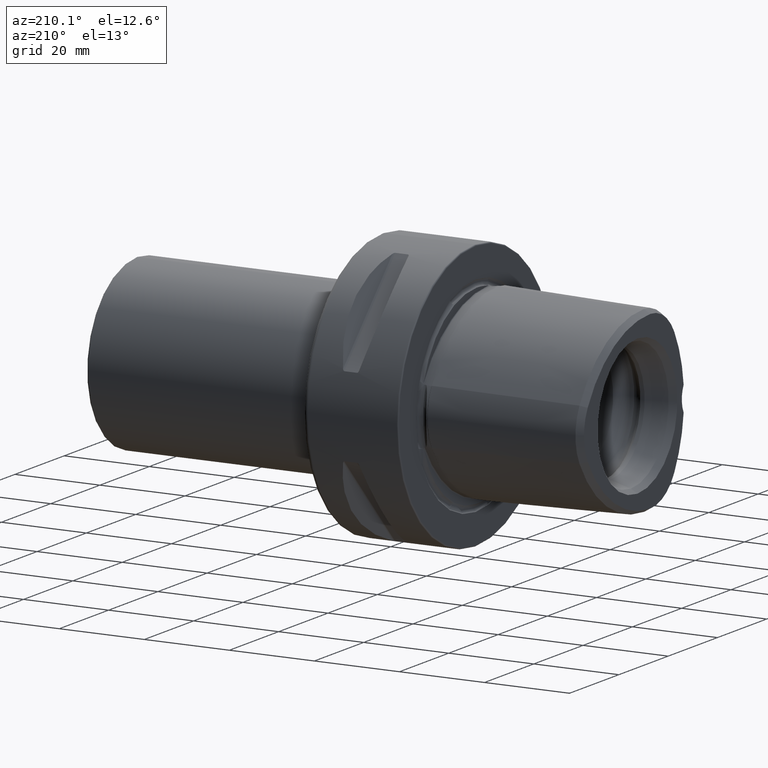
[diagram: clean part render]
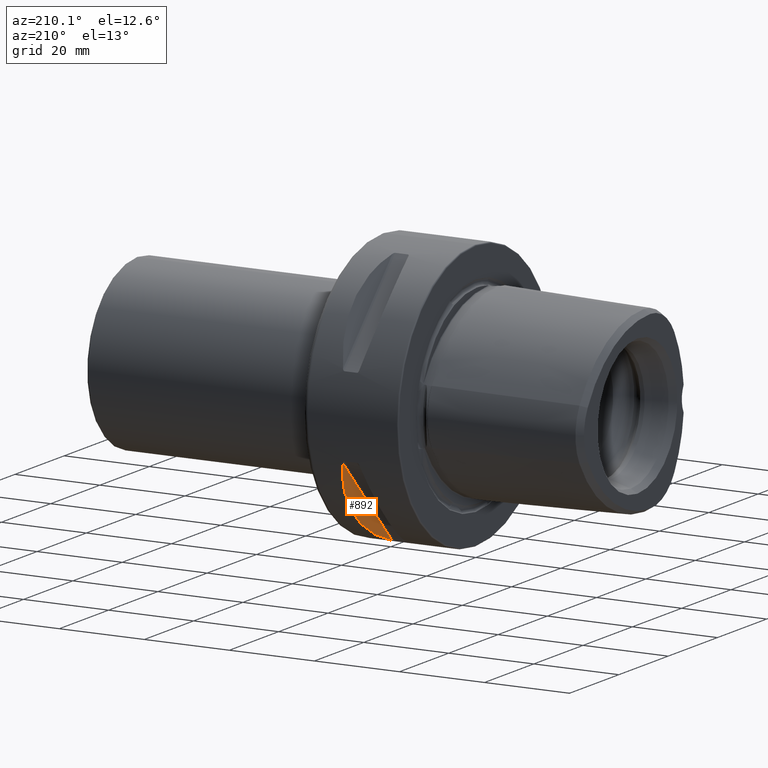
[diagram: same view with one face highlighted and labeled with its STEP entity id]
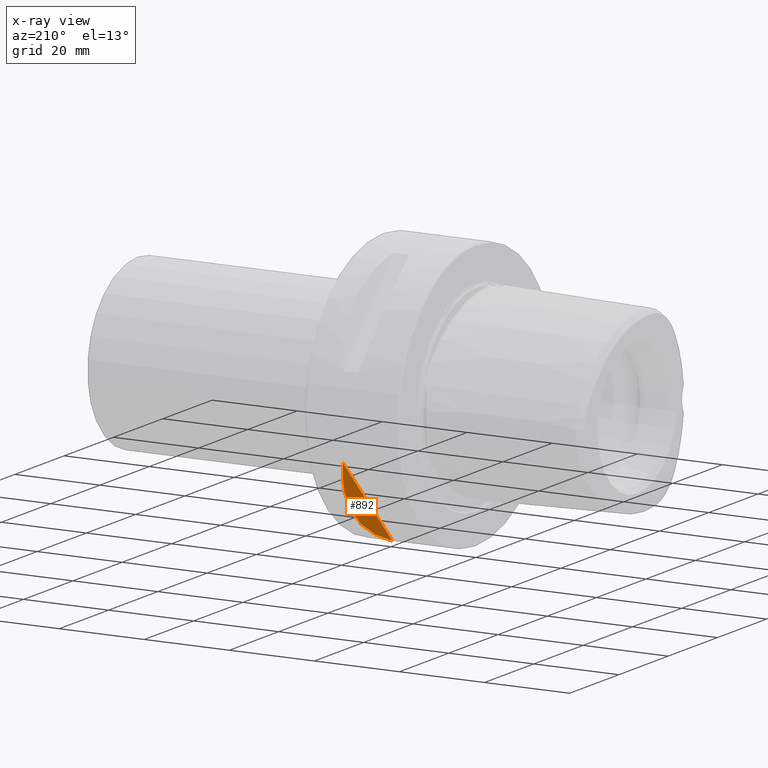
[diagram: x-ray of the same camera — body ghosted, the highlighted face saturated]
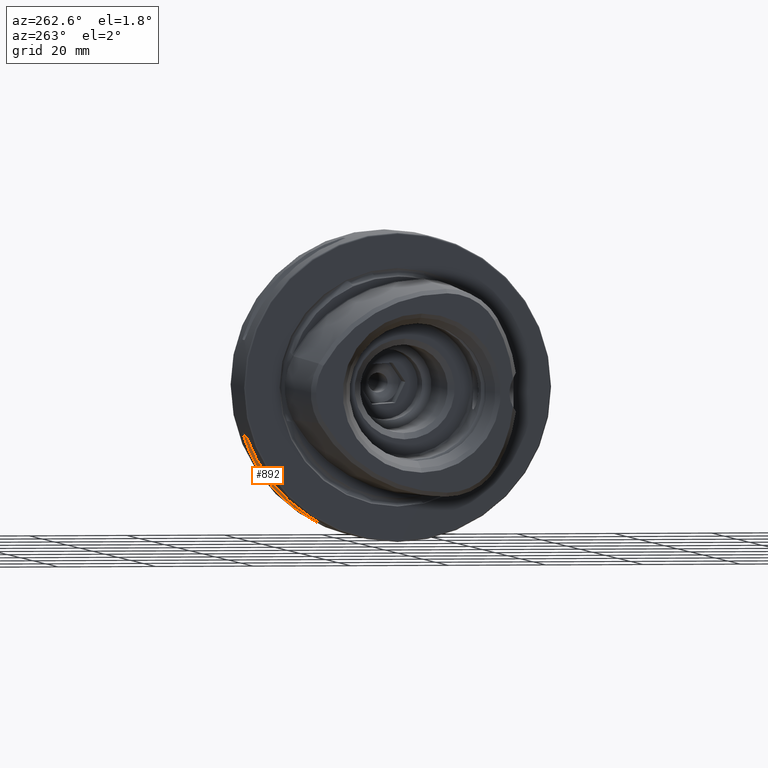
[diagram: same view with one face highlighted and labeled with its STEP entity id]
A machine part, auxiliary view. The second image highlights one B-rep face of the part: STEP entity #892.
The next image is the same camera in x-ray: the body ghosted, the highlighted face saturated — about 0% of this face is hidden behind the body in this view.
A second angle (auxiliary view) of the same face is appended — the face is thin or edge-on in the first view.
In plain terms, the highlighted planar face has unit normal (0.866, -0.3536, 0.3536).
Its self-contained STEP definition (entity closure, byte-faithful):
#143 =( BOUNDED_CURVE ( )  B_SPLINE_CURVE ( 3, ( #2285, #3342, #4476, #1222 ),
 .UNSPECIFIED., .F., .F. ) 
 B_SPLINE_CURVE_WITH_KNOTS ( ( 4, 4 ),
 ( 2.676211970017954700, 3.606973337161631900 ),
 .UNSPECIFIED. ) 
 CURVE ( )  GEOMETRIC_REPRESENTATION_ITEM ( )  RATIONAL_B_SPLINE_CURVE ( ( 1.000000000000000000, 0.9291005291005292000, 0.9291005291005292000, 1.000000000000000000 ) ) 
 REPRESENTATION_ITEM ( '' )  );
#158 = VERTEX_POINT ( 'NONE', #6399 ) ;
#567 = AXIS2_PLACEMENT_3D ( 'NONE', #6280, #5796, #6304 ) ;
#892 = ADVANCED_FACE ( 'NONE', ( #6132 ), #5188, .F. ) ;
#1222 = CARTESIAN_POINT ( 'NONE',  ( 13.90525588832577800, 29.90074246011739600, -9.909369320684987800 ) ) ;
#1292 = ORIENTED_EDGE ( 'NONE', *, *, #2355, .F. ) ;
#1417 = LINE ( 'NONE', #4401, #6815 ) ;
#2285 = CARTESIAN_POINT ( 'NONE',  ( 13.90525588832577800, 9.909369320685723200, -29.90074246011715400 ) ) ;
#2314 = EDGE_CURVE ( 'NONE', #158, #6191, #1417, .T. ) ;
#2355 = EDGE_CURVE ( 'NONE', #158, #6191, #143, .T. ) ;
#2619 = EDGE_LOOP ( 'NONE', ( #5174, #1292 ) ) ;
#3342 = CARTESIAN_POINT ( 'NONE',  ( 16.53328461079704700, 19.53756880257770200, -26.70987237765804800 ) ) ;
#4401 = CARTESIAN_POINT ( 'NONE',  ( 13.90525588832577800, -11.59494410959804600, -51.40505589040144900 ) ) ;
#4476 = CARTESIAN_POINT ( 'NONE',  ( 16.53328461079704300, 26.70987237765853100, -19.53756880257703100 ) ) ;
#5174 = ORIENTED_EDGE ( 'NONE', *, *, #2314, .T. ) ;
#5188 = PLANE ( 'NONE',  #567 ) ;
#5796 = DIRECTION ( 'NONE',  ( 0.8660254037844397100, -0.3535533905932768900, 0.3535533905932681200 ) ) ;
#6019 = CARTESIAN_POINT ( 'NONE',  ( 13.90525588832577800, 29.90074246011739600, -9.909369320684987800 ) ) ;
#6026 = DIRECTION ( 'NONE',  ( -0.0000000000000000000, 0.7071067811865388000, 0.7071067811865562300 ) ) ;
#6132 = FACE_OUTER_BOUND ( 'NONE', #2619, .T. ) ;
#6191 = VERTEX_POINT ( 'NONE', #6019 ) ;
#6280 = CARTESIAN_POINT ( 'NONE',  ( 15.83937929011100800, -9.226136392623086400, -53.77386360737635600 ) ) ;
#6304 = DIRECTION ( 'NONE',  ( 0.3779644730092297000, 0.9258200997725504200, 0.0000000000000000000 ) ) ;
#6399 = CARTESIAN_POINT ( 'NONE',  ( 13.90525588832577800, 9.909369320685723200, -29.90074246011715400 ) ) ;
#6815 = VECTOR ( 'NONE', #6026, 1000.000000000000000 ) ;